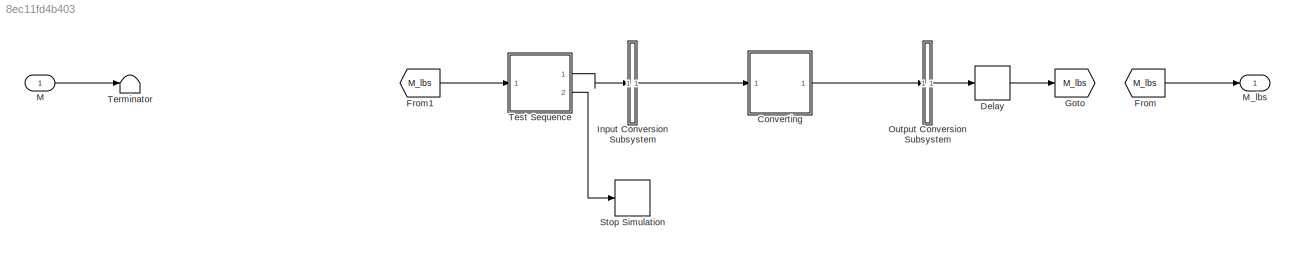
MODEL slx_8ec11fd4b403
KIND model
CONFIG AbsTol = auto
CONFIG EnableMultiTasking = off
CONFIG FixedStep = 0.02
CONFIG MaxStep = auto
CONFIG MinStep = auto
CONFIG RelTol = 1e-3
CONFIG SampleTimeConstraint = Unconstrained
CONFIG Solver = FixedStepAuto
CONFIG SolverName = FixedStepAuto
CONFIG StartTime = 0.0
CONFIG StopTime = 10
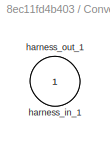
BLOCK [SubSystem] Converting
  Ports = [1, 1]
  RequestExecContextInheritance = off
  Tag = __SL_testing_harness_stub_
BLOCK [Inport] Converting/harness_in_1
  IconDisplay = Port number
BLOCK [Outport] Converting/harness_out_1
  IconDisplay = Port number
BLOCK [Delay] Delay
  DelayLength = 1
  InputPortMap = u0
  Ports = [1, 1]
BLOCK [From] From
  GotoTag = M_lbs
BLOCK [From] From1
  GotoTag = M_lbs
BLOCK [Goto] Goto
  GotoTag = M_lbs
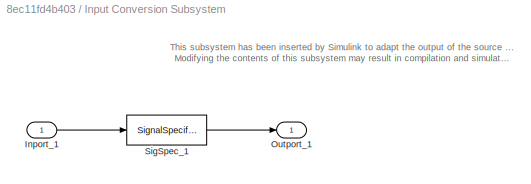
BLOCK [SubSystem] Input Conversion Subsystem
  AttributesFormatString = %<Description>
  Description = Signal spec.\nand routing
  Permissions = ReadOnly
  PermitHierarchicalResolution = ExplicitOnly
  Ports = [1, 1]
  RequestExecContextInheritance = off
  Tag = __SLT_ICS__
  UserDataPersistent = on
BLOCK [Inport] Input Conversion Subsystem/Inport_1
  IconDisplay = Port number
BLOCK [Outport] Input Conversion Subsystem/Outport_1
  IconDisplay = Port number
BLOCK [SignalSpecification] Input Conversion Subsystem/SigSpec_1
  Dimensions = [1]
  OutDataTypeStr = double
  SampleTime = 0.02
  SignalType = real
  Unit = kg
  VarSizeSig = No
BLOCK [Inport] M
  IconDisplay = Port number
  OutDataTypeStr = double
  PortDimensions = [1]
  SampleTime = 0.02
  SignalType = real
  VarSizeSig = No
BLOCK [Outport] M_lbs
  IconDisplay = Port number
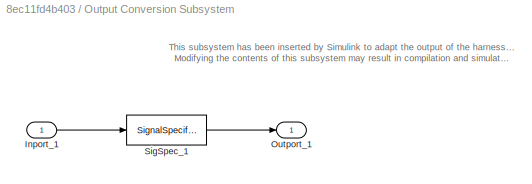
BLOCK [SubSystem] Output Conversion Subsystem
  AttributesFormatString = %<Description>
  Description = Signal spec.\nand routing
  Permissions = ReadOnly
  PermitHierarchicalResolution = ExplicitOnly
  Ports = [1, 1]
  RequestExecContextInheritance = off
  Tag = __SLT_OCS__
  UserDataPersistent = on
BLOCK [Inport] Output Conversion Subsystem/Inport_1
  IconDisplay = Port number
BLOCK [Outport] Output Conversion Subsystem/Outport_1
  IconDisplay = Port number
BLOCK [SignalSpecification] Output Conversion Subsystem/SigSpec_1
  Dimensions = [1]
  OutDataTypeStr = double
  SampleTime = 0.02
  SignalType = real
  Unit = lb
  VarSizeSig = No
BLOCK [Stop] Stop Simulation
BLOCK [Terminator] Terminator
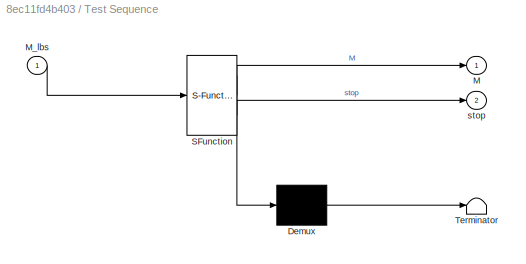
BLOCK [SubSystem] Test Sequence
  ErrorFcn = Stateflow.Translate.translate
  PermitHierarchicalResolution = ExplicitOnly
  Ports = [1, 2]
  RequestExecContextInheritance = off
  SFBlockType = Test Sequence
  TreatAsAtomicUnit = on
BLOCK [Demux] Test Sequence/ Demux 
  Outputs = 1
  Ports = [1, 1]
BLOCK [S-Function] Test Sequence/ SFunction 
  EnableBusSupport = on
  FunctionName = sf_sfun
  PortCounts = [1 3]
  Ports = [1, 3]
  SFcnIsStateOwnerBlock = off
  SFunctionDeploymentMode = off
  Tag = Stateflow S-Function 4
BLOCK [Terminator] Test Sequence/ Terminator 
BLOCK [Outport] Test Sequence/M
  IconDisplay = Port number
BLOCK [Inport] Test Sequence/M_lbs
  IconDisplay = Port number
BLOCK [Outport] Test Sequence/stop
  IconDisplay = Port number
  Port = 2
ANNOTATION Input Conversion Subsystem: This subsystem has been inserted by Simulink to adapt the output of the source blocks to the interface required by the harnessed component. Modifying the contents of this subsystem may result in compilation and simulation failure.
ANNOTATION Output Conversion Subsystem: This subsystem has been inserted by Simulink to adapt the output of the harnessed component to the interface required by the sink blocks. Modifying the contents of this subsystem may result in compilation and simulation failure.
LINE Converting:1 -> Output Conversion Subsystem:1
LINE Delay:1 -> Goto:1
LINE From1:1 -> Test Sequence:1
LINE From:1 -> M_lbs:1
LINE Input Conversion Subsystem/Inport_1:1 -> Input Conversion Subsystem/SigSpec_1:1
LINE Input Conversion Subsystem/SigSpec_1:1 -> Input Conversion Subsystem/Outport_1:1
LINE Input Conversion Subsystem:1 -> Converting:1
LINE M:1 -> Terminator:1
LINE Output Conversion Subsystem/Inport_1:1 -> Output Conversion Subsystem/SigSpec_1:1
LINE Output Conversion Subsystem/SigSpec_1:1 -> Output Conversion Subsystem/Outport_1:1
LINE Output Conversion Subsystem:1 -> Delay:1
LINE Test Sequence:1 -> Input Conversion Subsystem:1
LINE Test Sequence:2 -> Stop Simulation:1
CHART Test Sequence states=8 transitions=2
  STATE_LABEL 'Initialization\nM=0;\nstop=false;\ncount=0;'
  STATE_LABEL 'step_1\nM=0;'
  STATE_LABEL 'step_2\nverify(M_lbs==0);'
  STATE_LABEL 'step_3\nM=1;'
  STATE_LABEL 'step_4\nverify(M_lbs==2.205);'
  STATE_LABEL 'step_5\nM=-1;'
  STATE_LABEL 'step_6\nverify(M_lbs==-2.205);'
  STATE_LABEL 'step_7\nstop=true;'
